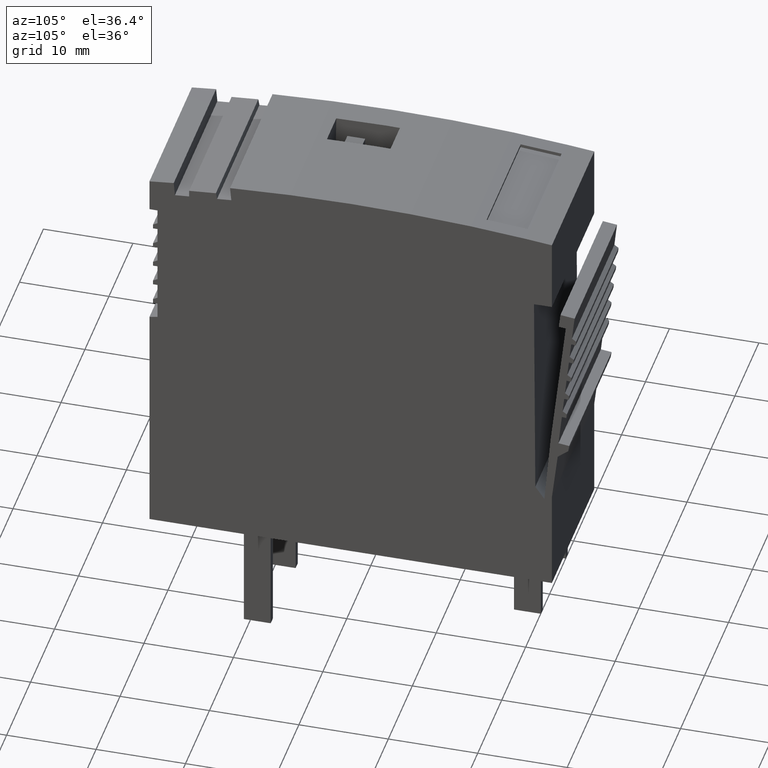
[diagram: clean part render]
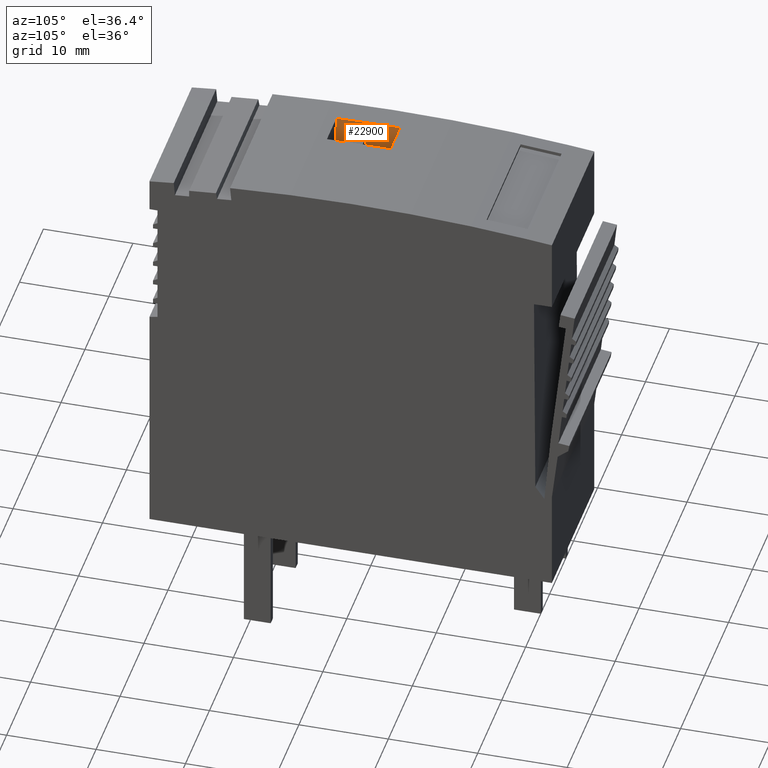
[diagram: same view with one face highlighted and labeled with its STEP entity id]
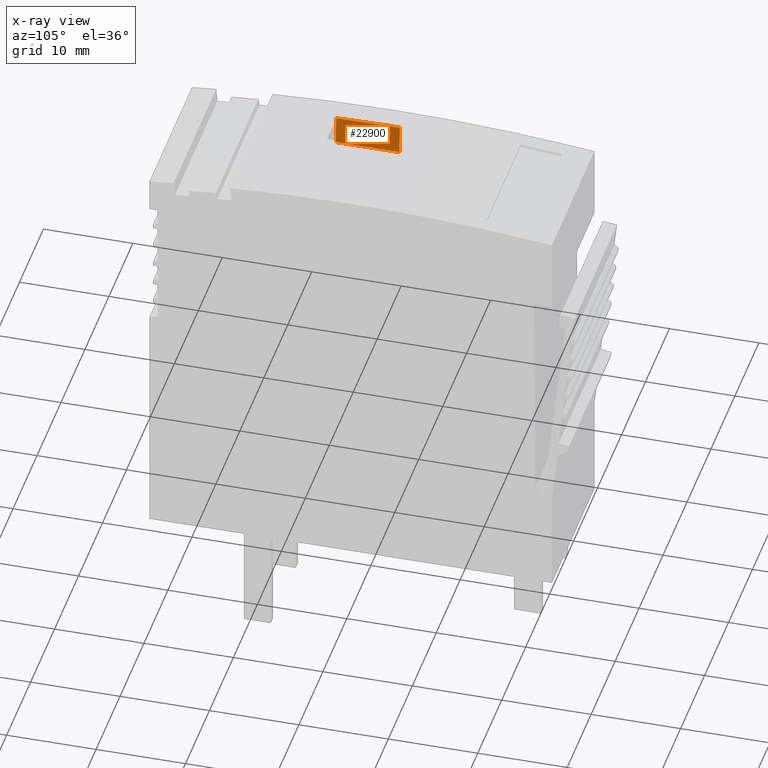
[diagram: x-ray of the same camera — body ghosted, the highlighted face saturated]
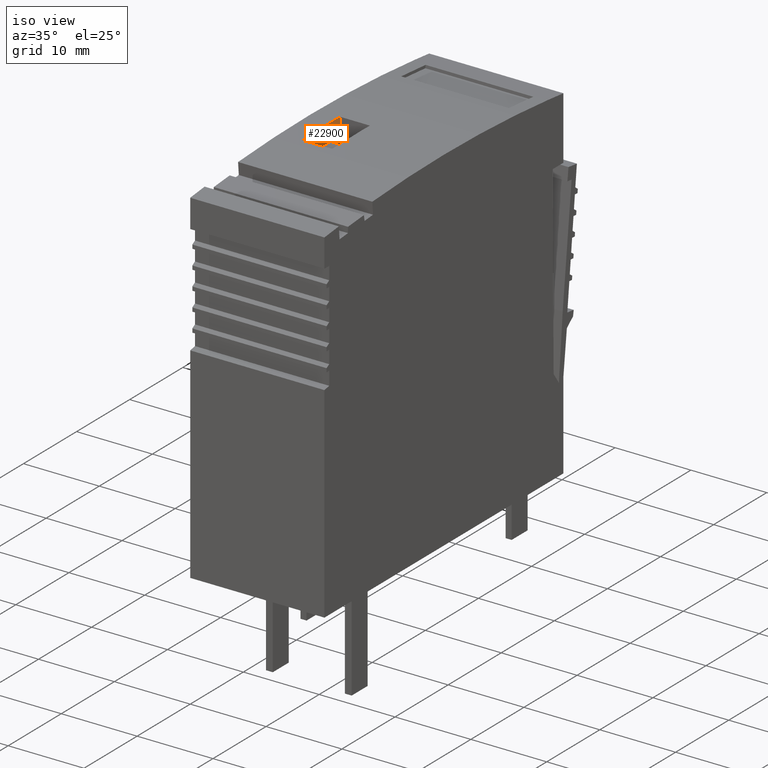
[diagram: same view with one face highlighted and labeled with its STEP entity id]
A machine part, auxiliary view. The second image highlights one B-rep face of the part: STEP entity #22900.
The next image is the same camera in x-ray: the body ghosted, the highlighted face saturated — about 0% of this face is hidden behind the body in this view.
A second angle (iso view) of the same face is appended — the face is thin or edge-on in the first view.
In plain terms, the highlighted face is a SurfaceOfExtrusion surface.
Its self-contained STEP definition (entity closure, byte-faithful):
#17370=CARTESIAN_POINT('',(139.153019907536,83.7500129560415,
-7.48552040462472));
#17380=VERTEX_POINT('',#17370);
#17410=CARTESIAN_POINT('',(131.987380474428,83.6294665301497,
-7.47557318011453));
#17420=CARTESIAN_POINT('',(132.788988977495,83.6429518640004,
-7.47723979117267));
#17430=CARTESIAN_POINT('',(133.590597480561,83.6564371978511,
-7.47890640223081));
#17440=CARTESIAN_POINT('',(135.236277308175,83.6841222109239,
-7.48232790810104));
#17450=CARTESIAN_POINT('',(136.157882898261,83.6996262369085,
-7.48377702527558));
#17460=CARTESIAN_POINT('',(137.148578649497,83.7162925558145,
-7.484643731259));
#17470=CARTESIAN_POINT('',(138.152963658429,83.7331891669511,
-7.48552241323156));
#17480=CARTESIAN_POINT('',(139.076157088893,83.7487199049247,
-7.48566927670668));
#17490=CARTESIAN_POINT('',(140.707585404079,83.776165167044,
-7.48513334864356));
#17500=CARTESIAN_POINT('',(141.509195597837,83.789650529337,
-7.4848700177975));
#17510=CARTESIAN_POINT('',(142.310805791596,83.8031358916299,
-7.48460668695144));
#17520=B_SPLINE_CURVE_WITH_KNOTS('',3,(#17410,#17420,#17430,#17440,
#17450,#17460,#17470,#17480,#17490,#17500,#17510),.UNSPECIFIED.,.F.,.F.,
(4,2,3,2,4),(-2.61659932642542,0.,2.75520587770478,5.51143231132242,
8.17396660461665),.UNSPECIFIED.);
#17530=CARTESIAN_POINT('',(133.593396322929,83.6564842823363,
-7.47891222125797));
#17540=VERTEX_POINT('',#17530);
#17550=EDGE_CURVE('',#17540,#17380,#17520,.T.);
#18200=CARTESIAN_POINT('',(124.590272633308,80.4538084051073,
-7.46030072472344));
#18210=CARTESIAN_POINT('',(127.038167381185,80.4538084051073,
-7.46539154318635));
#18220=CARTESIAN_POINT('',(129.486062129062,80.4538084051073,
-7.47048236164927));
#18230=CARTESIAN_POINT('',(132.735338518353,80.4538084051073,
-7.47723979117031));
#18240=CARTESIAN_POINT('',(133.536720159768,80.4538084051073,
-7.47890640222845));
#18250=CARTESIAN_POINT('',(135.181934246759,80.4538084051073,
-7.48232790809865));
#18260=CARTESIAN_POINT('',(136.103279015052,80.4538084051073,
-7.48377702527318));
#18270=CARTESIAN_POINT('',(137.093694391425,80.4538084051073,
-7.48464373125659));
#18280=CARTESIAN_POINT('',(138.097795151324,80.4538084051073,
-7.48552241322914));
#18290=CARTESIAN_POINT('',(139.020727310624,80.4538084051073,
-7.48566927670425));
#18300=CARTESIAN_POINT('',(140.651693918479,80.4538084051073,
-7.4851333486411));
#18310=CARTESIAN_POINT('',(141.453077250107,80.4538084051073,
-7.48487001779503));
#18320=CARTESIAN_POINT('',(144.702360492528,80.4538084051073,
-7.4838023183913));
#18330=CARTESIAN_POINT('',(147.150260403321,80.4538084051073,
-7.48299794983364));
#18340=CARTESIAN_POINT('',(149.598160314114,80.4538084051073,
-7.48219358127597));
#18350=B_SPLINE_CURVE_WITH_KNOTS('',3,(#18200,#18210,#18220,#18230,
#18240,#18250,#18260,#18270,#18280,#18290,#18300,#18310,#18320,#18330,
#18340),.UNSPECIFIED.,.F.,.F.,(4,2,2,3,2,2,4),(-10.6092452986354,
-2.61659932642542,0.,2.75520587770478,5.51143231132242,8.17396660461665,
16.3069252048319),.UNSPECIFIED.);
#18360=CARTESIAN_POINT('',(133.539518210041,80.4538084051073,
-7.47891222125559));
#18370=VERTEX_POINT('',#18360);
#18380=CARTESIAN_POINT('',(140.649877205943,80.4538084051073,
-7.48513394560442));
#18390=VERTEX_POINT('',#18380);
#18400=EDGE_CURVE('',#18370,#18390,#18350,.T.);
#21960=CARTESIAN_POINT('',(133.596542268955,83.8434887059911,
-7.4789122212581));
#21970=DIRECTION('',(-0.0168204628257921,-0.999858526007718,
7.39439759455423E-13));
#21980=VECTOR('',#21970,1.);
#21990=LINE('',#21960,#21980);
#22000=EDGE_CURVE('',#17540,#18370,#21990,.T.);
#22250=CARTESIAN_POINT('',(140.704889545423,83.7239060970454,
-7.48513394560683));
#22260=DIRECTION('',(-0.0168204628257921,-0.999858526007718,
7.39439759455423E-13));
#22270=VECTOR('',#22260,1.);
#22280=LINE('',#22250,#22270);
#22290=CARTESIAN_POINT('',(140.704889545423,83.7239060970463,
-7.48513394560683));
#22300=VERTEX_POINT('',#22290);
#22310=EDGE_CURVE('',#22300,#18390,#22280,.T.);
#22510=CARTESIAN_POINT('',(124.649828684103,83.9939978623894,
-7.46030072472605));
#22520=CARTESIAN_POINT('',(127.097030854089,83.9528289649336,
-7.46539154318894));
#22530=CARTESIAN_POINT('',(129.544233024075,83.9116600674779,
-7.47048236165182));
#22540=CARTESIAN_POINT('',(132.792590102194,83.8570134669277,
-7.47723979117283));
#22550=CARTESIAN_POINT('',(133.593745010328,83.8435357638333,
-7.47890640223095));
#22560=CARTESIAN_POINT('',(135.238493620237,83.8158664164895,
-7.48232790810114));
#22570=CARTESIAN_POINT('',(136.159577714327,83.8003711635502,
-7.48377702527566));
#22580=CARTESIAN_POINT('',(137.149712874488,83.7837142753797,
-7.48464373125905));
#22590=CARTESIAN_POINT('',(138.153529546198,83.7668272252909,
-7.48552241323159));
#22600=CARTESIAN_POINT('',(139.076200582176,83.7513052754776,
-7.48566927670668));
#22610=CARTESIAN_POINT('',(140.706705743959,83.7238755434228,
-7.48513334864352));
#22620=CARTESIAN_POINT('',(141.507862341829,83.7103978119023,
-7.48487001779744));
#22630=CARTESIAN_POINT('',(144.756226271139,83.6557510960956,
-7.48380231839367));
#22640=CARTESIAN_POINT('',(147.20343360258,83.6145821118095,
-7.48299794983597));
#22650=CARTESIAN_POINT('',(149.650640934021,83.5734131275235,
-7.48219358127828));
#22660=B_SPLINE_CURVE_WITH_KNOTS('',3,(#22510,#22520,#22530,#22540,
#22550,#22560,#22570,#22580,#22590,#22600,#22610,#22620,#22630,#22640,
#22650),.UNSPECIFIED.,.F.,.F.,(4,2,2,3,2,2,4),(-10.6092452986354,
-2.61659932642542,0.,2.75520587770478,5.51143231132242,8.17396660461665,
16.3069252048319),.UNSPECIFIED.);
#22670=DIRECTION('',(-0.0168204628257921,-0.999858526007718,
7.39439759455423E-13));
#22680=VECTOR('',#22670,1.);
#22690=SURFACE_OF_LINEAR_EXTRUSION('',#22660,#22680);
#22700=ORIENTED_EDGE('',*,*,#18400,.T.);
#22710=ORIENTED_EDGE('',*,*,#22000,.T.);
#22720=ORIENTED_EDGE('',*,*,#17550,.F.);
#22730=CARTESIAN_POINT('',(131.991435194061,83.8704911700222,
-7.47557318011471));
#22740=CARTESIAN_POINT('',(132.792590102194,83.8570134669278,
-7.47723979117283));
#22750=CARTESIAN_POINT('',(133.593745010328,83.8435357638333,
-7.47890640223095));
#22760=CARTESIAN_POINT('',(135.238493620237,83.8158664164896,
-7.48232790810114));
#22770=CARTESIAN_POINT('',(136.159577714327,83.8003711635502,
-7.48377702527566));
#22780=CARTESIAN_POINT('',(137.149712874488,83.7837142753797,
-7.48464373125905));
#22790=CARTESIAN_POINT('',(138.153529546198,83.7668272252909,
-7.48552241323159));
#22800=CARTESIAN_POINT('',(139.076200582176,83.7513052754776,
-7.48566927670668));
#22810=CARTESIAN_POINT('',(140.706705743959,83.7238755434229,
-7.48513334864352));
#22820=CARTESIAN_POINT('',(141.507862341829,83.7103978119023,
-7.48487001779744));
#22830=CARTESIAN_POINT('',(142.309018939698,83.6969200803817,
-7.48460668695136));
#22840=B_SPLINE_CURVE_WITH_KNOTS('',3,(#22730,#22740,#22750,#22760,
#22770,#22780,#22790,#22800,#22810,#22820,#22830),.UNSPECIFIED.,.F.,.F.,
(4,2,3,2,4),(-2.61659932642542,0.,2.75520587770478,5.51143231132242,
8.17396660461665),.UNSPECIFIED.);
#22850=EDGE_CURVE('',#17380,#22300,#22840,.T.);
#22860=ORIENTED_EDGE('',*,*,#22850,.F.);
#22870=ORIENTED_EDGE('',*,*,#22310,.F.);
#22880=EDGE_LOOP('',(#22870,#22860,#22720,#22710,#22700));
#22890=FACE_OUTER_BOUND('',#22880,.T.);
#22900=ADVANCED_FACE('',(#22890),#22690,.F.);